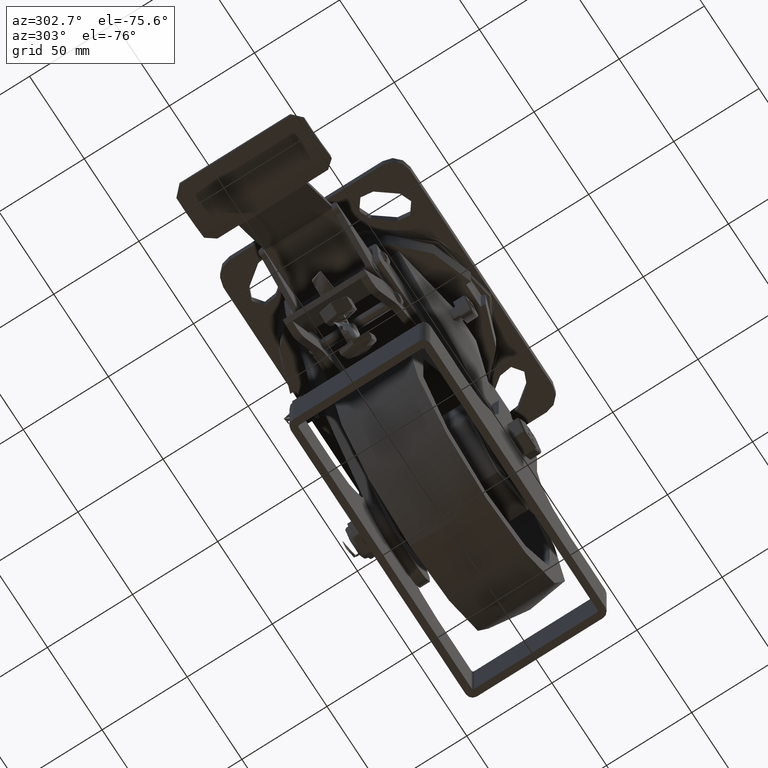
[diagram: clean part render]
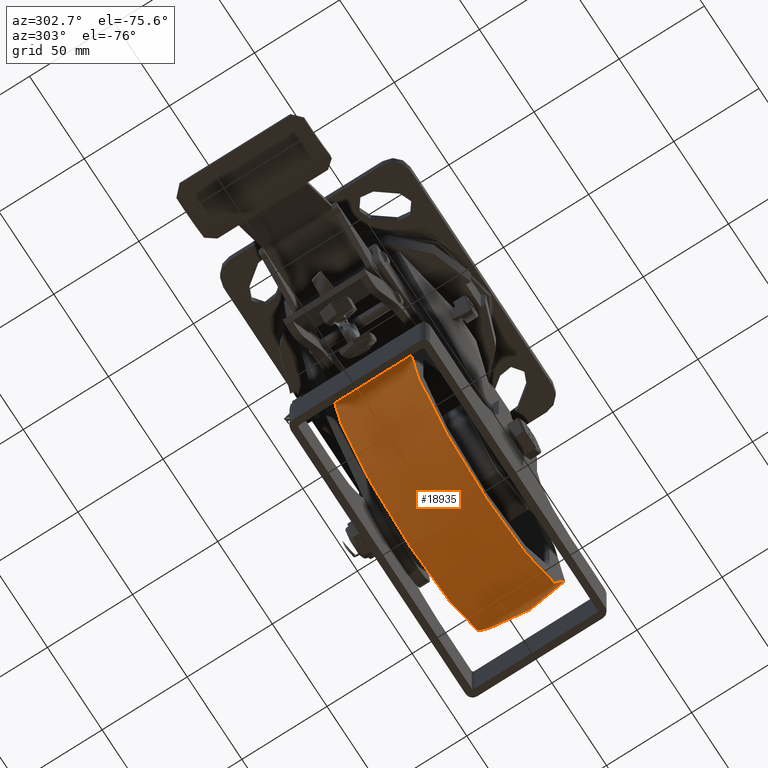
[diagram: same view with one face highlighted and labeled with its STEP entity id]
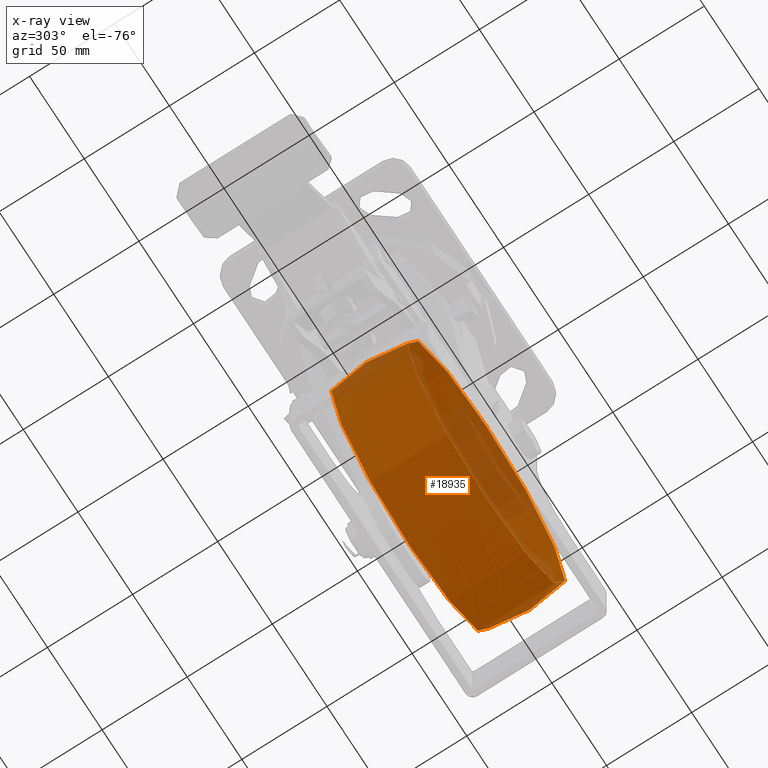
[diagram: x-ray of the same camera — body ghosted, the highlighted face saturated]
A machine part, auxiliary view. The second image highlights one B-rep face of the part: STEP entity #18935.
The next image is the same camera in x-ray: the body ghosted, the highlighted face saturated — about 21% of this face is hidden behind the body in this view.
In plain terms, the highlighted face is a freeform B-spline surface patch.
Its self-contained STEP definition (entity closure, byte-faithful):
#67=(
BOUNDED_SURFACE()
B_SPLINE_SURFACE(2,2,((#31180,#31181,#31182,#31183,#31184,#31185,#31186,
#31187,#31188),(#31189,#31190,#31191,#31192,#31193,#31194,#31195,#31196,
#31197),(#31198,#31199,#31200,#31201,#31202,#31203,#31204,#31205,#31206)),
 .UNSPECIFIED.,.F.,.T.,.F.)
B_SPLINE_SURFACE_WITH_KNOTS((3,3),(3,2,2,2,3),(-0.265103064593349,0.265103064593349),
(-3.14159265358979,-1.5707963267949,0.,1.5707963267949,3.14159265358979),
 .UNSPECIFIED.)
GEOMETRIC_REPRESENTATION_ITEM()
RATIONAL_B_SPLINE_SURFACE(((1.,0.707106781186548,1.,0.707106781186548,1.,
0.707106781186548,1.,0.707106781186548,1.),(0.965065502183404,0.682404360883086,
0.965065502183404,0.682404360883086,0.965065502183404,0.682404360883086,
0.965065502183404,0.682404360883086,0.965065502183404),(1.,0.707106781186548,
1.,0.707106781186548,1.,0.707106781186548,1.,0.707106781186548,1.)))
REPRESENTATION_ITEM('')
SURFACE()
);
#5472=FACE_OUTER_BOUND('',#6695,.T.);
#6695=EDGE_LOOP('',(#14673,#14674,#14675,#14676));
#7767=CIRCLE('',#20498,72.);
#7768=CIRCLE('',#20499,85.8749999999997);
#7769=CIRCLE('',#20500,72.);
#8847=VERTEX_POINT('',#31207);
#8848=VERTEX_POINT('',#31209);
#10970=EDGE_CURVE('',#8847,#8847,#7767,.T.);
#10971=EDGE_CURVE('',#8847,#8848,#7768,.T.);
#10972=EDGE_CURVE('',#8848,#8848,#7769,.T.);
#14673=ORIENTED_EDGE('',*,*,#10970,.F.);
#14674=ORIENTED_EDGE('',*,*,#10971,.T.);
#14675=ORIENTED_EDGE('',*,*,#10972,.T.);
#14676=ORIENTED_EDGE('',*,*,#10971,.F.);
#18935=ADVANCED_FACE('',(#5472),#67,.F.);
#20498=AXIS2_PLACEMENT_3D('',#31208,#23010,#23011);
#20499=AXIS2_PLACEMENT_3D('',#31210,#23012,#23013);
#20500=AXIS2_PLACEMENT_3D('',#31211,#23014,#23015);
#23010=DIRECTION('center_axis',(3.49148336110938E-15,-1.,0.));
#23011=DIRECTION('ref_axis',(0.,0.,1.));
#23012=DIRECTION('center_axis',(1.,3.49148336110938E-15,1.22464679914735E-16));
#23013=DIRECTION('ref_axis',(1.22464679914735E-16,4.27299656994715E-31,
-1.));
#23014=DIRECTION('center_axis',(3.49148336110938E-15,-1.,0.));
#23015=DIRECTION('ref_axis',(0.,0.,1.));
#31180=CARTESIAN_POINT('Ctrl Pts',(-8.20278225769147E-14,22.5,-72.));
#31181=CARTESIAN_POINT('Ctrl Pts',(71.9999999999999,22.5000000000003,-72.));
#31182=CARTESIAN_POINT('Ctrl Pts',(71.9999999999999,22.5000000000003,0.));
#31183=CARTESIAN_POINT('Ctrl Pts',(71.9999999999999,22.5000000000003,72.));
#31184=CARTESIAN_POINT('Ctrl Pts',(-8.20278225769147E-14,22.5,72.));
#31185=CARTESIAN_POINT('Ctrl Pts',(-72.0000000000001,22.4999999999998,72.));
#31186=CARTESIAN_POINT('Ctrl Pts',(-72.0000000000001,22.4999999999998,0.));
#31187=CARTESIAN_POINT('Ctrl Pts',(-72.0000000000001,22.4999999999998,-72.));
#31188=CARTESIAN_POINT('Ctrl Pts',(-8.20278225769147E-14,22.5,-72.));
#31189=CARTESIAN_POINT('Ctrl Pts',(-3.46944695195362E-15,0.,-78.1085972850679));
#31190=CARTESIAN_POINT('Ctrl Pts',(78.1085972850679,2.72714867780408E-13,
-78.1085972850679));
#31191=CARTESIAN_POINT('Ctrl Pts',(78.1085972850679,2.72714867780408E-13,
-3.94430452610506E-30));
#31192=CARTESIAN_POINT('Ctrl Pts',(78.1085972850679,2.72714867780408E-13,
78.1085972850679));
#31193=CARTESIAN_POINT('Ctrl Pts',(-3.46944695195361E-15,0.,78.1085972850679));
#31194=CARTESIAN_POINT('Ctrl Pts',(-78.1085972850679,-2.72714867780408E-13,
78.1085972850679));
#31195=CARTESIAN_POINT('Ctrl Pts',(-78.1085972850679,-2.72714867780408E-13,
3.94430452610506E-30));
#31196=CARTESIAN_POINT('Ctrl Pts',(-78.1085972850679,-2.72714867780408E-13,
-78.1085972850679));
#31197=CARTESIAN_POINT('Ctrl Pts',(-3.46944695195362E-15,0.,-78.1085972850679));
#31198=CARTESIAN_POINT('Ctrl Pts',(7.50889286730075E-14,-22.5,-72.));
#31199=CARTESIAN_POINT('Ctrl Pts',(72.,-22.4999999999998,-72.));
#31200=CARTESIAN_POINT('Ctrl Pts',(72.0000000000001,-22.4999999999998,0.));
#31201=CARTESIAN_POINT('Ctrl Pts',(72.,-22.4999999999998,72.));
#31202=CARTESIAN_POINT('Ctrl Pts',(7.50889286730075E-14,-22.5,72.));
#31203=CARTESIAN_POINT('Ctrl Pts',(-71.9999999999999,-22.5000000000003,
72.));
#31204=CARTESIAN_POINT('Ctrl Pts',(-71.9999999999999,-22.5000000000003,
0.));
#31205=CARTESIAN_POINT('Ctrl Pts',(-71.9999999999999,-22.5000000000003,
-72.));
#31206=CARTESIAN_POINT('Ctrl Pts',(7.50889286730075E-14,-22.5,-72.));
#31207=CARTESIAN_POINT('',(6.62714717191464E-14,-22.5,-72.));
#31208=CARTESIAN_POINT('Origin',(7.50889286730073E-14,-22.5,0.));
#31209=CARTESIAN_POINT('',(-9.08452795307755E-14,22.5,-72.));
#31210=CARTESIAN_POINT('Origin',(-4.80125034602634E-15,3.46944695195361E-15,
10.8749999999997));
#31211=CARTESIAN_POINT('Origin',(-8.20278225769146E-14,22.5,0.));